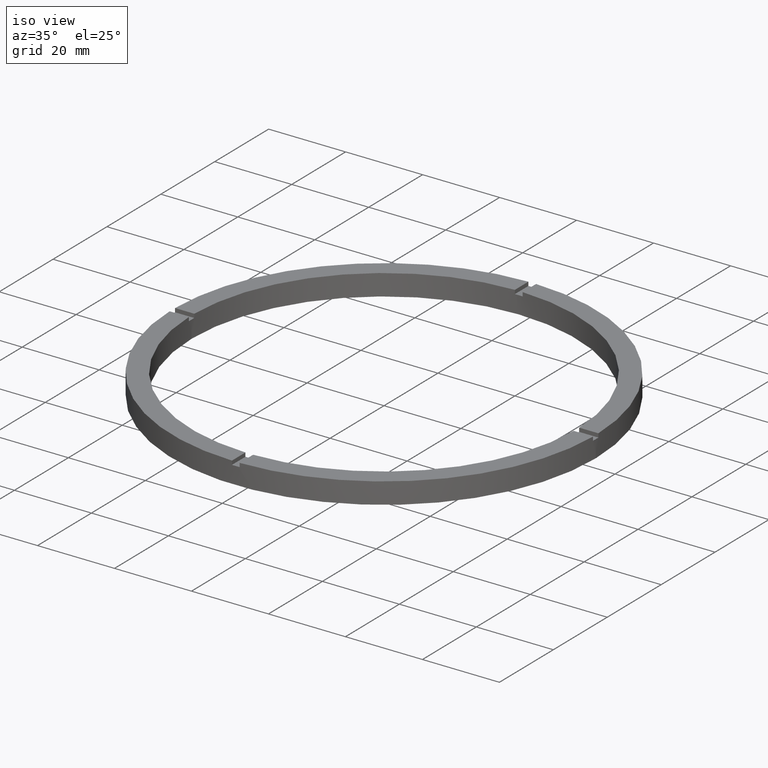
[diagram: clean part render]
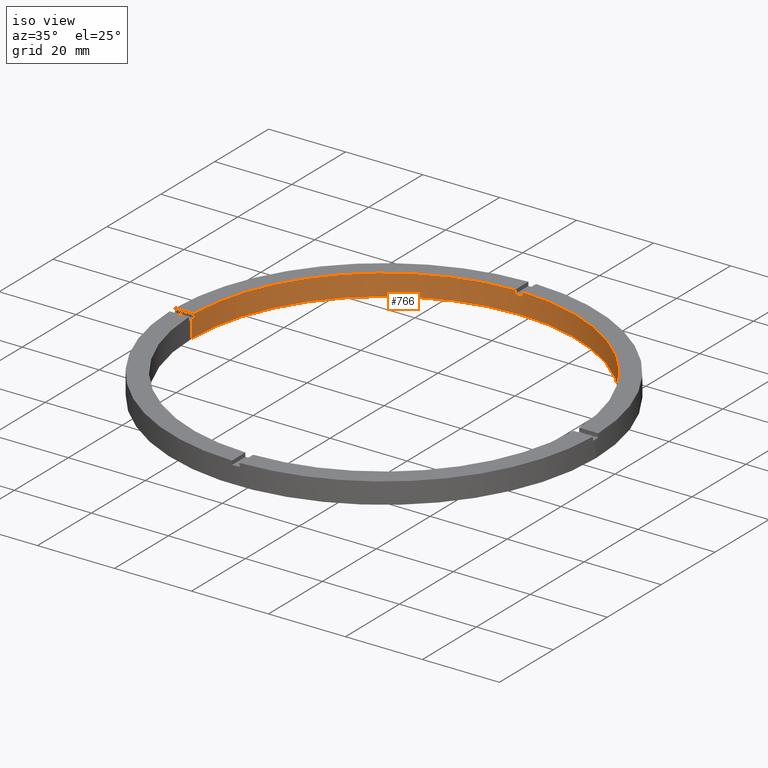
[diagram: same view with one face highlighted and labeled with its STEP entity id]
A machine part, iso view. The second image highlights one B-rep face of the part: STEP entity #766.
In plain terms, the highlighted cylindrical surface (partial cylindrical patch) has radius 50 mm, axis along (-0, -0, -1).
Its self-contained STEP definition (entity closure, byte-faithful):
#5 = AXIS2_PLACEMENT_3D ( 'NONE', #548, #639, #750 ) ;
#6 = CARTESIAN_POINT ( 'NONE',  ( 49.98999899979995831, 0.9999999999998454570, 5.500000000000000000 ) ) ;
#8 = EDGE_CURVE ( 'NONE', #748, #681, #470, .T. ) ;
#16 = DIRECTION ( 'NONE',  ( 0.000000000000000000, -0.000000000000000000, 1.000000000000000000 ) ) ;
#19 = VECTOR ( 'NONE', #368, 1000.000000000000000 ) ;
#21 = VECTOR ( 'NONE', #277, 1000.000000000000000 ) ;
#53 = VECTOR ( 'NONE', #572, 1000.000000000000000 ) ;
#62 = DIRECTION ( 'NONE',  ( -1.000000000000000000, 0.000000000000000000, 0.000000000000000000 ) ) ;
#68 = CARTESIAN_POINT ( 'NONE',  ( 0.000000000000000000, 0.000000000000000000, 4.500000000000000000 ) ) ;
#87 = EDGE_CURVE ( 'NONE', #748, #702, #321, .T. ) ;
#90 = DIRECTION ( 'NONE',  ( 1.000000000000000000, 0.000000000000000000, 0.000000000000000000 ) ) ;
#101 = EDGE_CURVE ( 'NONE', #481, #222, #569, .T. ) ;
#109 = EDGE_CURVE ( 'NONE', #435, #187, #558, .T. ) ;
#123 = CIRCLE ( 'NONE', #5, 50.00000000000000000 ) ;
#128 = VECTOR ( 'NONE', #743, 1000.000000000000000 ) ;
#130 = LINE ( 'NONE', #301, #128 ) ;
#136 = CYLINDRICAL_SURFACE ( 'NONE', #330, 50.00000000000000000 ) ;
#144 = FACE_OUTER_BOUND ( 'NONE', #722, .T. ) ;
#150 = VECTOR ( 'NONE', #610, 1000.000000000000000 ) ;
#157 = VERTEX_POINT ( 'NONE', #584 ) ;
#163 = ORIENTED_EDGE ( 'NONE', *, *, #8, .T. ) ;
#172 = ORIENTED_EDGE ( 'NONE', *, *, #553, .T. ) ;
#177 = ORIENTED_EDGE ( 'NONE', *, *, #752, .T. ) ;
#187 = VERTEX_POINT ( 'NONE', #242 ) ;
#190 = VERTEX_POINT ( 'NONE', #290 ) ;
#199 = VERTEX_POINT ( 'NONE', #6 ) ;
#205 = CARTESIAN_POINT ( 'NONE',  ( 0.000000000000000000, 0.000000000000000000, 4.500000000000000000 ) ) ;
#222 = VERTEX_POINT ( 'NONE', #358 ) ;
#242 = CARTESIAN_POINT ( 'NONE',  ( 0.9999999999999726885, 49.98999899979995121, 5.500000000000000000 ) ) ;
#256 = EDGE_CURVE ( 'NONE', #222, #493, #285, .T. ) ;
#273 = CARTESIAN_POINT ( 'NONE',  ( -1.000000000000027311, 49.98999899979995121, 5.500000000000000000 ) ) ;
#277 = DIRECTION ( 'NONE',  ( 0.000000000000000000, 0.000000000000000000, 1.000000000000000000 ) ) ;
#284 = EDGE_CURVE ( 'NONE', #435, #702, #288, .T. ) ;
#285 = CIRCLE ( 'NONE', #507, 50.00000000000000000 ) ;
#287 = CARTESIAN_POINT ( 'NONE',  ( 49.98999899979995831, 0.9999999999998454570, 5.500000000000000000 ) ) ;
#288 = CIRCLE ( 'NONE', #646, 50.00000000000000000 ) ;
#290 = CARTESIAN_POINT ( 'NONE',  ( -50.00000000000000000, 0.000000000000000000, 4.500000000000000000 ) ) ;
#301 = CARTESIAN_POINT ( 'NONE',  ( -50.00000000000000000, 0.000000000000000000, 5.500000000000000000 ) ) ;
#321 = LINE ( 'NONE', #273, #53 ) ;
#330 = AXIS2_PLACEMENT_3D ( 'NONE', #384, #532, #62 ) ;
#344 = CARTESIAN_POINT ( 'NONE',  ( 0.000000000000000000, 0.000000000000000000, 5.500000000000000000 ) ) ;
#348 = AXIS2_PLACEMENT_3D ( 'NONE', #205, #405, #504 ) ;
#350 = CARTESIAN_POINT ( 'NONE',  ( -49.98999899979995121, 0.9999999999999681366, 5.500000000000000000 ) ) ;
#358 = CARTESIAN_POINT ( 'NONE',  ( 50.00000000000000000, 6.123233995736766085E-15, 0.000000000000000000 ) ) ;
#362 = AXIS2_PLACEMENT_3D ( 'NONE', #344, #525, #713 ) ;
#368 = DIRECTION ( 'NONE',  ( -0.000000000000000000, -0.000000000000000000, -1.000000000000000000 ) ) ;
#384 = CARTESIAN_POINT ( 'NONE',  ( 0.000000000000000000, 0.000000000000000000, 5.500000000000000000 ) ) ;
#397 = CIRCLE ( 'NONE', #574, 50.00000000000000000 ) ;
#403 = CARTESIAN_POINT ( 'NONE',  ( -49.98999899979995121, 0.9999999999999681366, 4.500000000000000000 ) ) ;
#405 = DIRECTION ( 'NONE',  ( 0.000000000000000000, 0.000000000000000000, 1.000000000000000000 ) ) ;
#408 = CARTESIAN_POINT ( 'NONE',  ( -1.000000000000027311, 49.98999899979995121, 5.500000000000000000 ) ) ;
#435 = VERTEX_POINT ( 'NONE', #523 ) ;
#458 = ORIENTED_EDGE ( 'NONE', *, *, #101, .F. ) ;
#465 = ORIENTED_EDGE ( 'NONE', *, *, #256, .F. ) ;
#466 = EDGE_CURVE ( 'NONE', #671, #681, #644, .T. ) ;
#470 = CIRCLE ( 'NONE', #362, 50.00000000000000000 ) ;
#473 = ORIENTED_EDGE ( 'NONE', *, *, #628, .T. ) ;
#475 = ORIENTED_EDGE ( 'NONE', *, *, #563, .T. ) ;
#481 = VERTEX_POINT ( 'NONE', #607 ) ;
#493 = VERTEX_POINT ( 'NONE', #716 ) ;
#504 = DIRECTION ( 'NONE',  ( 1.000000000000000000, 0.000000000000000000, 0.000000000000000000 ) ) ;
#507 = AXIS2_PLACEMENT_3D ( 'NONE', #534, #577, #624 ) ;
#511 = CARTESIAN_POINT ( 'NONE',  ( 0.000000000000000000, 0.000000000000000000, 4.500000000000000000 ) ) ;
#523 = CARTESIAN_POINT ( 'NONE',  ( 0.9999999999999726885, 49.98999899979995121, 4.500000000000000000 ) ) ;
#525 = DIRECTION ( 'NONE',  ( 0.000000000000000000, 0.000000000000000000, 1.000000000000000000 ) ) ;
#532 = DIRECTION ( 'NONE',  ( -0.000000000000000000, -0.000000000000000000, -1.000000000000000000 ) ) ;
#534 = CARTESIAN_POINT ( 'NONE',  ( 0.000000000000000000, 0.000000000000000000, 0.000000000000000000 ) ) ;
#535 = CARTESIAN_POINT ( 'NONE',  ( -49.98999899979995121, 0.9999999999999681366, 5.500000000000000000 ) ) ;
#548 = CARTESIAN_POINT ( 'NONE',  ( 0.000000000000000000, 0.000000000000000000, 5.500000000000000000 ) ) ;
#553 = EDGE_CURVE ( 'NONE', #481, #157, #648, .T. ) ;
#558 = LINE ( 'NONE', #675, #21 ) ;
#563 = EDGE_CURVE ( 'NONE', #199, #187, #123, .T. ) ;
#569 = LINE ( 'NONE', #621, #19 ) ;
#572 = DIRECTION ( 'NONE',  ( -0.000000000000000000, -0.000000000000000000, -1.000000000000000000 ) ) ;
#574 = AXIS2_PLACEMENT_3D ( 'NONE', #68, #755, #90 ) ;
#577 = DIRECTION ( 'NONE',  ( 0.000000000000000000, 0.000000000000000000, 1.000000000000000000 ) ) ;
#584 = CARTESIAN_POINT ( 'NONE',  ( 49.98999899979995831, 0.9999999999998454570, 4.500000000000000000 ) ) ;
#589 = CARTESIAN_POINT ( 'NONE',  ( -1.000000000000027311, 49.98999899979995121, 4.500000000000000000 ) ) ;
#605 = DIRECTION ( 'NONE',  ( 0.000000000000000000, 0.000000000000000000, 1.000000000000000000 ) ) ;
#607 = CARTESIAN_POINT ( 'NONE',  ( 50.00000000000000000, 6.123233995736766085E-15, 4.500000000000000000 ) ) ;
#610 = DIRECTION ( 'NONE',  ( -0.000000000000000000, -0.000000000000000000, -1.000000000000000000 ) ) ;
#621 = CARTESIAN_POINT ( 'NONE',  ( 50.00000000000000000, 6.123233995736766085E-15, 5.500000000000000000 ) ) ;
#624 = DIRECTION ( 'NONE',  ( 1.000000000000000000, 0.000000000000000000, 0.000000000000000000 ) ) ;
#628 = EDGE_CURVE ( 'NONE', #190, #493, #130, .T. ) ;
#639 = DIRECTION ( 'NONE',  ( 0.000000000000000000, 0.000000000000000000, 1.000000000000000000 ) ) ;
#644 = LINE ( 'NONE', #350, #651 ) ;
#646 = AXIS2_PLACEMENT_3D ( 'NONE', #511, #16, #659 ) ;
#648 = CIRCLE ( 'NONE', #348, 50.00000000000000000 ) ;
#651 = VECTOR ( 'NONE', #605, 1000.000000000000000 ) ;
#659 = DIRECTION ( 'NONE',  ( 1.000000000000000000, 0.000000000000000000, 0.000000000000000000 ) ) ;
#669 = LINE ( 'NONE', #287, #150 ) ;
#671 = VERTEX_POINT ( 'NONE', #403 ) ;
#675 = CARTESIAN_POINT ( 'NONE',  ( 0.9999999999999726885, 49.98999899979995121, 5.500000000000000000 ) ) ;
#681 = VERTEX_POINT ( 'NONE', #535 ) ;
#689 = ORIENTED_EDGE ( 'NONE', *, *, #466, .F. ) ;
#702 = VERTEX_POINT ( 'NONE', #589 ) ;
#713 = DIRECTION ( 'NONE',  ( 1.000000000000000000, 0.000000000000000000, 0.000000000000000000 ) ) ;
#716 = CARTESIAN_POINT ( 'NONE',  ( -50.00000000000000000, 0.000000000000000000, 0.000000000000000000 ) ) ;
#722 = EDGE_LOOP ( 'NONE', ( #458, #172, #727, #475, #734, #735, #746, #163, #689, #177, #473, #465 ) ) ;
#727 = ORIENTED_EDGE ( 'NONE', *, *, #776, .F. ) ;
#734 = ORIENTED_EDGE ( 'NONE', *, *, #109, .F. ) ;
#735 = ORIENTED_EDGE ( 'NONE', *, *, #284, .T. ) ;
#743 = DIRECTION ( 'NONE',  ( -0.000000000000000000, -0.000000000000000000, -1.000000000000000000 ) ) ;
#746 = ORIENTED_EDGE ( 'NONE', *, *, #87, .F. ) ;
#748 = VERTEX_POINT ( 'NONE', #408 ) ;
#750 = DIRECTION ( 'NONE',  ( 1.000000000000000000, 0.000000000000000000, 0.000000000000000000 ) ) ;
#752 = EDGE_CURVE ( 'NONE', #671, #190, #397, .T. ) ;
#755 = DIRECTION ( 'NONE',  ( 0.000000000000000000, 0.000000000000000000, 1.000000000000000000 ) ) ;
#766 = ADVANCED_FACE ( 'NONE', ( #144 ), #136, .F. ) ;
#776 = EDGE_CURVE ( 'NONE', #199, #157, #669, .T. ) ;